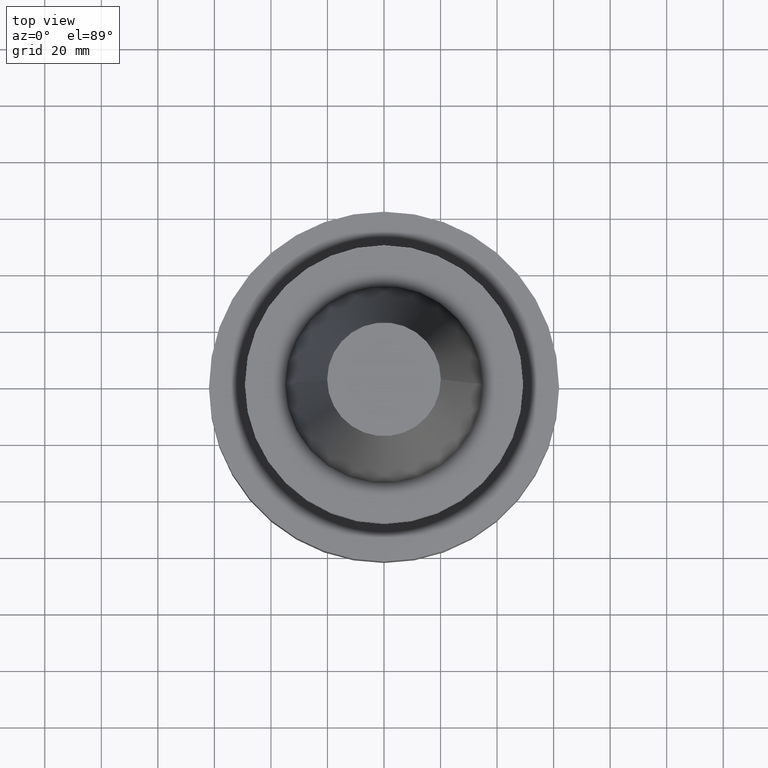
[diagram: clean part render]
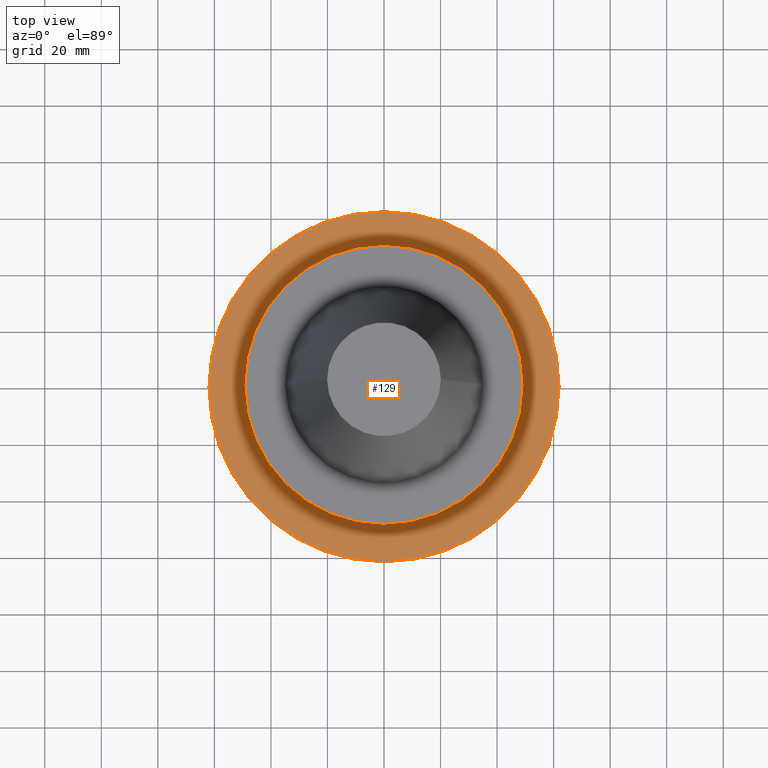
[diagram: same view with one face highlighted and labeled with its STEP entity id]
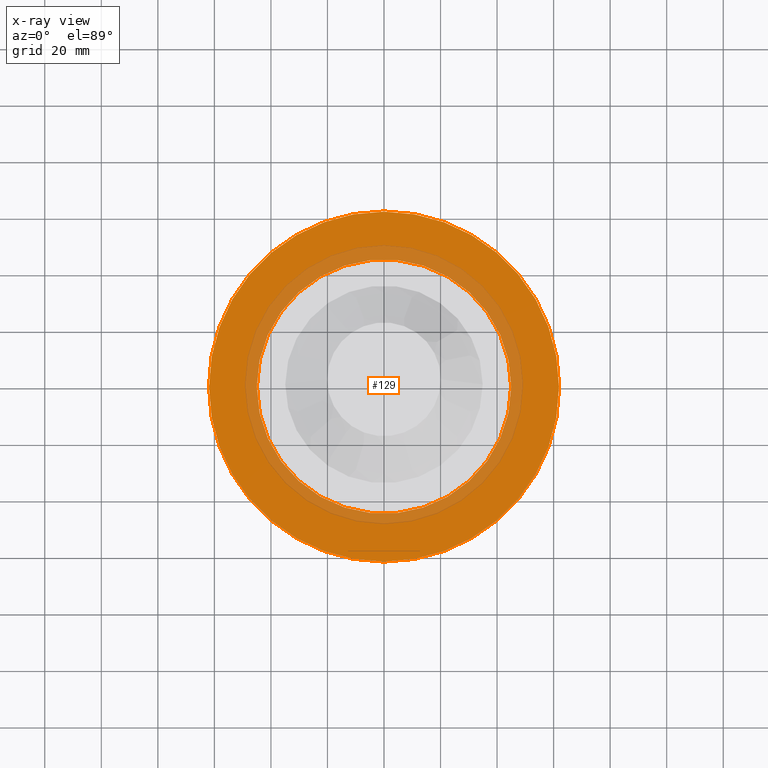
[diagram: x-ray of the same camera — body ghosted, the highlighted face saturated]
A machine part, top view. The second image highlights one B-rep face of the part: STEP entity #129.
The next image is the same camera in x-ray: the body ghosted, the highlighted face saturated — about 23% of this face is hidden behind the body in this view.
In plain terms, the highlighted planar face has unit normal (0, 0, -1).
Its self-contained STEP definition (entity closure, byte-faithful):
#25 = CARTESIAN_POINT ( 'NONE',  ( -45.00000000000000000, 5.510910596163089556E-15, -48.00999999999999801 ) ) ;
#99 = VERTEX_POINT ( 'NONE', #136 ) ;
#109 = AXIS2_PLACEMENT_3D ( 'NONE', #1062, #164, #908 ) ;
#129 = ADVANCED_FACE ( 'NONE', ( #513, #177 ), #331, .F. ) ;
#136 = CARTESIAN_POINT ( 'NONE',  ( 61.89999999999999858, 0.000000000000000000, -48.00999999999999801 ) ) ;
#154 = DIRECTION ( 'NONE',  ( -0.000000000000000000, -0.000000000000000000, 1.000000000000000000 ) ) ;
#157 = VERTEX_POINT ( 'NONE', #162 ) ;
#162 = CARTESIAN_POINT ( 'NONE',  ( -61.89999999999999858, 7.580563686722116084E-15, -48.00999999999999801 ) ) ;
#164 = DIRECTION ( 'NONE',  ( -0.000000000000000000, -0.000000000000000000, 1.000000000000000000 ) ) ;
#177 = FACE_OUTER_BOUND ( 'NONE', #188, .T. ) ;
#188 = EDGE_LOOP ( 'NONE', ( #888, #348 ) ) ;
#201 = DIRECTION ( 'NONE',  ( -0.000000000000000000, -0.000000000000000000, 1.000000000000000000 ) ) ;
#263 = CARTESIAN_POINT ( 'NONE',  ( 0.000000000000000000, 0.000000000000000000, -48.00999999999999801 ) ) ;
#268 = AXIS2_PLACEMENT_3D ( 'NONE', #480, #154, #402 ) ;
#300 = EDGE_CURVE ( 'NONE', #157, #99, #689, .T. ) ;
#331 = PLANE ( 'NONE',  #625 ) ;
#338 = CIRCLE ( 'NONE', #734, 45.00000000000000000 ) ;
#345 = DIRECTION ( 'NONE',  ( -1.000000000000000000, 0.000000000000000000, -0.000000000000000000 ) ) ;
#347 = CARTESIAN_POINT ( 'NONE',  ( 0.000000000000000000, 45.00000000000000000, -48.00999999999999801 ) ) ;
#348 = ORIENTED_EDGE ( 'NONE', *, *, #300, .T. ) ;
#402 = DIRECTION ( 'NONE',  ( 1.000000000000000000, 0.000000000000000000, 0.000000000000000000 ) ) ;
#459 = CARTESIAN_POINT ( 'NONE',  ( 0.000000000000000000, 0.000000000000000000, -48.00999999999999801 ) ) ;
#480 = CARTESIAN_POINT ( 'NONE',  ( 0.000000000000000000, 0.000000000000000000, -48.00999999999999801 ) ) ;
#510 = AXIS2_PLACEMENT_3D ( 'NONE', #459, #782, #1023 ) ;
#513 = FACE_BOUND ( 'NONE', #767, .T. ) ;
#537 = CIRCLE ( 'NONE', #109, 45.00000000000000000 ) ;
#565 = VERTEX_POINT ( 'NONE', #25 ) ;
#600 = CIRCLE ( 'NONE', #268, 61.89999999999999858 ) ;
#625 = AXIS2_PLACEMENT_3D ( 'NONE', #347, #680, #345 ) ;
#680 = DIRECTION ( 'NONE',  ( 0.000000000000000000, 0.000000000000000000, -1.000000000000000000 ) ) ;
#689 = CIRCLE ( 'NONE', #510, 61.89999999999999858 ) ;
#697 = EDGE_CURVE ( 'NONE', #565, #768, #338, .T. ) ;
#734 = AXIS2_PLACEMENT_3D ( 'NONE', #263, #201, #1013 ) ;
#767 = EDGE_LOOP ( 'NONE', ( #933, #812 ) ) ;
#768 = VERTEX_POINT ( 'NONE', #794 ) ;
#782 = DIRECTION ( 'NONE',  ( -0.000000000000000000, -0.000000000000000000, 1.000000000000000000 ) ) ;
#794 = CARTESIAN_POINT ( 'NONE',  ( 45.00000000000000000, 0.000000000000000000, -48.00999999999999801 ) ) ;
#812 = ORIENTED_EDGE ( 'NONE', *, *, #697, .F. ) ;
#888 = ORIENTED_EDGE ( 'NONE', *, *, #909, .T. ) ;
#908 = DIRECTION ( 'NONE',  ( 1.000000000000000000, 0.000000000000000000, 0.000000000000000000 ) ) ;
#909 = EDGE_CURVE ( 'NONE', #99, #157, #600, .T. ) ;
#933 = ORIENTED_EDGE ( 'NONE', *, *, #985, .F. ) ;
#985 = EDGE_CURVE ( 'NONE', #768, #565, #537, .T. ) ;
#1013 = DIRECTION ( 'NONE',  ( 1.000000000000000000, 0.000000000000000000, 0.000000000000000000 ) ) ;
#1023 = DIRECTION ( 'NONE',  ( 1.000000000000000000, 0.000000000000000000, 0.000000000000000000 ) ) ;
#1062 = CARTESIAN_POINT ( 'NONE',  ( 0.000000000000000000, 0.000000000000000000, -48.00999999999999801 ) ) ;